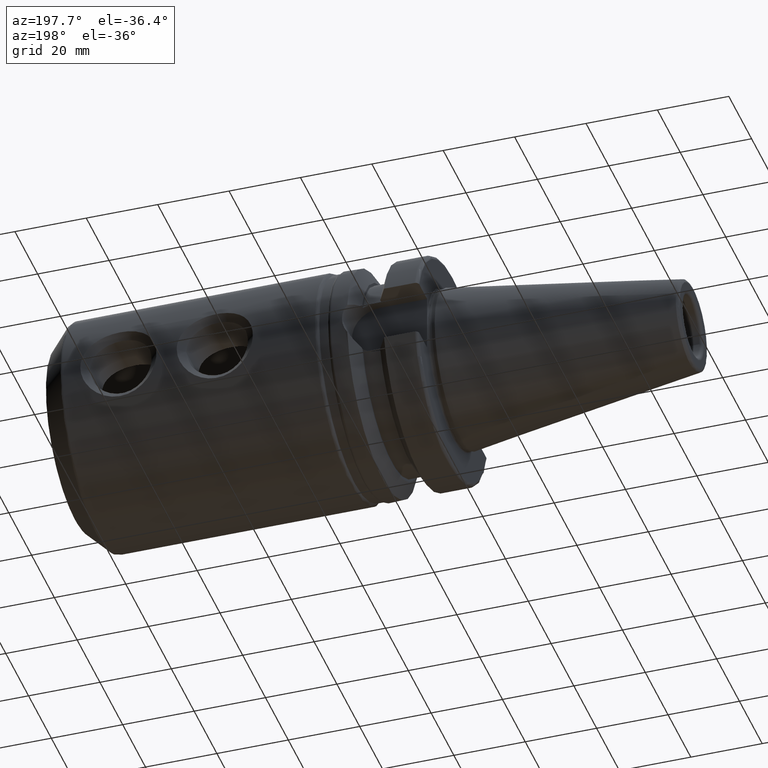
[diagram: clean part render]
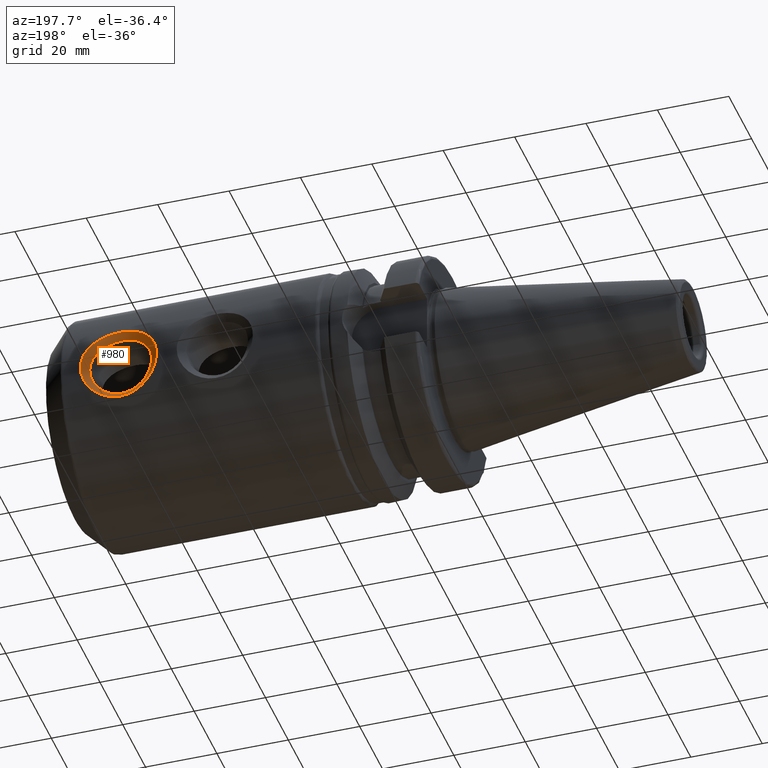
[diagram: same view with one face highlighted and labeled with its STEP entity id]
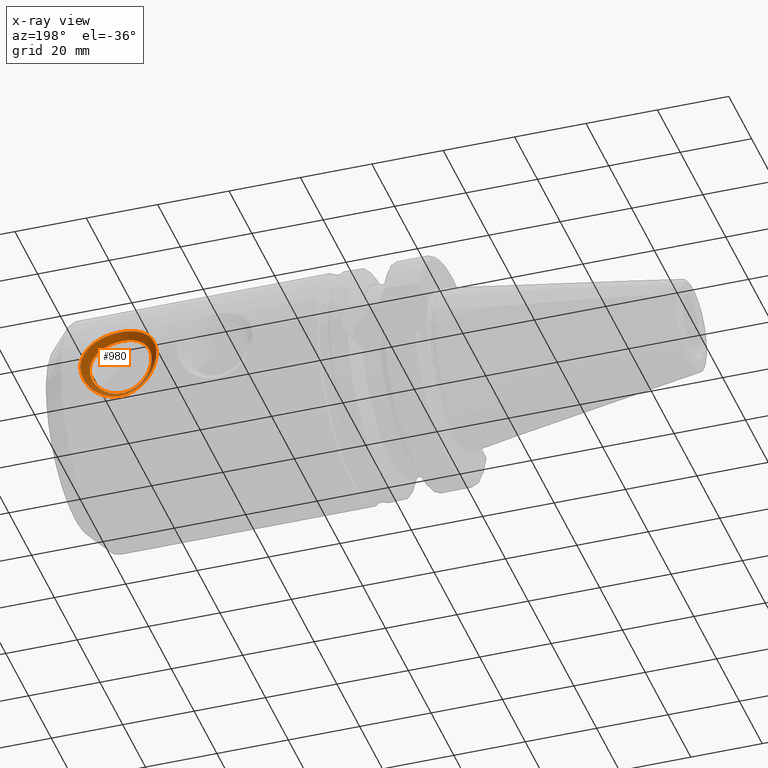
[diagram: x-ray of the same camera — body ghosted, the highlighted face saturated]
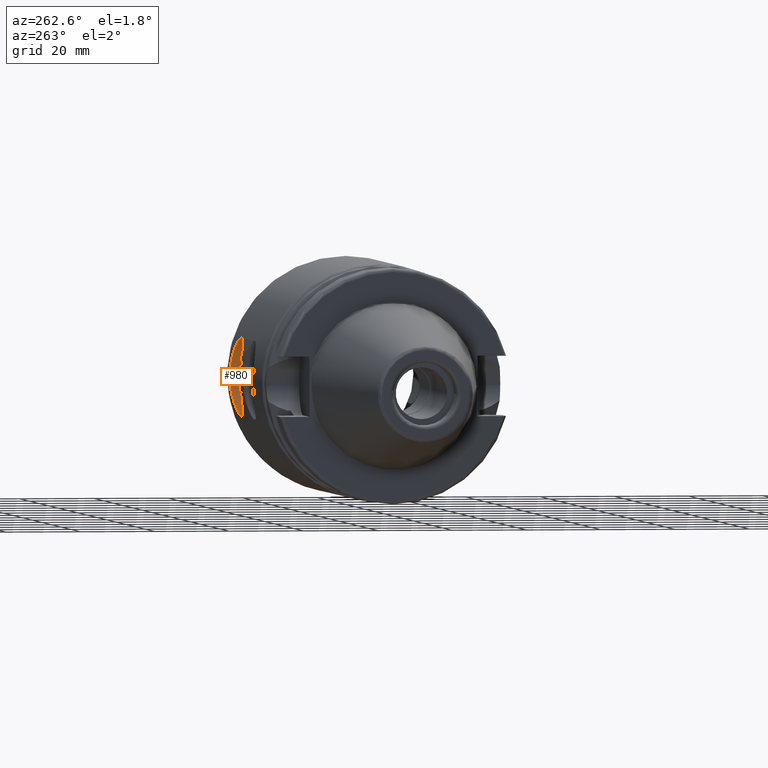
[diagram: same view with one face highlighted and labeled with its STEP entity id]
A machine part, auxiliary view. The second image highlights one B-rep face of the part: STEP entity #980.
The next image is the same camera in x-ray: the body ghosted, the highlighted face saturated — about 0% of this face is hidden behind the body in this view.
A second angle (auxiliary view) of the same face is appended — the face is thin or edge-on in the first view.
In plain terms, the highlighted face is a freeform B-spline surface patch.
Its self-contained STEP definition (entity closure, byte-faithful):
#19=B_SPLINE_SURFACE_WITH_KNOTS('',3,3,((#1774,#1775,#1776,#1777,#1778,
#1779,#1780,#1781,#1782,#1783,#1784,#1785,#1786,#1787,#1788,#1789,#1790,
#1791,#1792,#1793,#1794,#1795,#1796,#1797,#1798,#1799,#1800,#1801,#1802,
#1803,#1804),(#1805,#1806,#1807,#1808,#1809,#1810,#1811,#1812,#1813,#1814,
#1815,#1816,#1817,#1818,#1819,#1820,#1821,#1822,#1823,#1824,#1825,#1826,
#1827,#1828,#1829,#1830,#1831,#1832,#1833,#1834,#1835),(#1836,#1837,#1838,
#1839,#1840,#1841,#1842,#1843,#1844,#1845,#1846,#1847,#1848,#1849,#1850,
#1851,#1852,#1853,#1854,#1855,#1856,#1857,#1858,#1859,#1860,#1861,#1862,
#1863,#1864,#1865,#1866),(#1867,#1868,#1869,#1870,#1871,#1872,#1873,#1874,
#1875,#1876,#1877,#1878,#1879,#1880,#1881,#1882,#1883,#1884,#1885,#1886,
#1887,#1888,#1889,#1890,#1891,#1892,#1893,#1894,#1895,#1896,#1897)),
 .UNSPECIFIED.,.F.,.T.,.F.,(4,4),(4,1,1,1,1,1,1,1,1,1,1,1,1,1,1,1,1,1,1,
1,1,1,1,1,1,1,1,1,4),(0.,1.),(3.93676515653178,4.12423016398568,4.31169517143957,
4.49916017889347,4.68662518634736,4.87409019380126,5.06155520125515,5.43648521616294,
5.56146188779887,5.6864385594348,5.81141523107073,5.93639190270666,6.06136857434259,
6.18634524597852,6.43629858925038,6.68625193252224,6.9362052757941,7.06118194743003,
7.18615861906595,7.31113529070188,7.43611196233781,7.68606530560967,7.8110419772456,
7.93601864888153,8.18597199215339,8.43592533542525,8.62339034287914,8.81085535033304,
9.18578536524083),.UNSPECIFIED.);
#43=B_SPLINE_CURVE_WITH_KNOTS('',3,(#1672,#1673,#1674,#1675,#1676,#1677,
#1678,#1679,#1680,#1681,#1682,#1683,#1684,#1685,#1686,#1687,#1688,#1689,
#1690,#1691,#1692,#1693,#1694,#1695,#1696,#1697,#1698,#1699,#1700,#1701,
#1702),.UNSPECIFIED.,.T.,.F.,(4,1,1,1,1,1,1,1,1,1,1,1,1,1,1,1,1,1,1,1,1,
1,1,1,1,1,1,1,4),(-9.18578536524083,-8.81085535033304,-8.62339034287914,
-8.43592533542525,-8.18597199215339,-7.93601864888153,-7.8110419772456,
-7.68606530560967,-7.43611196233781,-7.31113529070188,-7.18615861906595,
-7.06118194743003,-6.9362052757941,-6.68625193252224,-6.43629858925038,
-6.18634524597852,-6.06136857434259,-5.93639190270666,-5.81141523107073,
-5.6864385594348,-5.56146188779887,-5.43648521616294,-5.06155520125515,
-4.87409019380126,-4.68662518634736,-4.49916017889347,-4.31169517143957,
-4.12423016398568,-3.93676515653178),.UNSPECIFIED.);
#48=B_SPLINE_CURVE_WITH_KNOTS('',3,(#1900,#1901,#1902,#1903,#1904,#1905,
#1906,#1907,#1908,#1909,#1910,#1911,#1912,#1913,#1914,#1915,#1916,#1917,
#1918,#1919,#1920,#1921,#1922,#1923,#1924,#1925,#1926,#1927,#1928,#1929,
#1930),.UNSPECIFIED.,.T.,.F.,(4,1,1,1,1,1,1,1,1,1,1,1,1,1,1,1,1,1,1,1,1,
1,1,1,1,1,1,1,4),(3.93676515653178,4.12423016398568,4.31169517143957,4.49916017889347,
4.68662518634736,4.87409019380126,5.06155520125515,5.43648521616294,5.56146188779887,
5.6864385594348,5.81141523107073,5.93639190270666,6.06136857434259,6.18634524597852,
6.43629858925038,6.68625193252224,6.9362052757941,7.06118194743003,7.18615861906595,
7.31113529070188,7.43611196233781,7.68606530560967,7.8110419772456,7.93601864888153,
8.18597199215339,8.43592533542525,8.62339034287914,8.81085535033304,9.18578536524083),
 .UNSPECIFIED.);
#68=LINE('',#1899,#122);
#122=VECTOR('',#1241,10.);
#223=FACE_OUTER_BOUND('',#286,.T.);
#286=EDGE_LOOP('',(#720,#721,#722,#723));
#428=VERTEX_POINT('',#1671);
#437=VERTEX_POINT('',#1898);
#536=EDGE_CURVE('',#428,#428,#43,.T.);
#547=EDGE_CURVE('',#428,#437,#68,.T.);
#548=EDGE_CURVE('',#437,#437,#48,.T.);
#720=ORIENTED_EDGE('',*,*,#547,.T.);
#721=ORIENTED_EDGE('',*,*,#548,.T.);
#722=ORIENTED_EDGE('',*,*,#547,.F.);
#723=ORIENTED_EDGE('',*,*,#536,.T.);
#980=ADVANCED_FACE('',(#223),#19,.T.);
#1241=DIRECTION('',(-0.707106781186546,-0.707106781186549,4.41588504004812E-16));
#1671=CARTESIAN_POINT('',(96.2114,31.75,-5.82867087928207E-15));
#1672=CARTESIAN_POINT('Ctrl Pts',(96.2114,31.75,-5.82867087928207E-15));
#1673=CARTESIAN_POINT('Ctrl Pts',(96.2114,31.75,-1.5383497898483));
#1674=CARTESIAN_POINT('Ctrl Pts',(95.6738769844959,31.5592554210622,-4.00497855982346));
#1675=CARTESIAN_POINT('Ctrl Pts',(93.9175809211257,31.0485577038571,-6.7153363933822));
#1676=CARTESIAN_POINT('Ctrl Pts',(92.1365461056781,30.613216698045,-8.48403391513177));
#1677=CARTESIAN_POINT('Ctrl Pts',(89.5391423838426,30.1435397995726,-9.99747062449679));
#1678=CARTESIAN_POINT('Ctrl Pts',(86.8414374487087,29.9349283882428,-10.5780596679465));
#1679=CARTESIAN_POINT('Ctrl Pts',(84.7784937450455,29.936575787415,-10.5770898281813));
#1680=CARTESIAN_POINT('Ctrl Pts',(82.6409072714766,30.0431233024017,-10.2720155760751));
#1681=CARTESIAN_POINT('Ctrl Pts',(80.5884798459898,30.3114468826463,-9.48131356326349));
#1682=CARTESIAN_POINT('Ctrl Pts',(78.825798025829,30.657332551499,-8.27790823019173));
#1683=CARTESIAN_POINT('Ctrl Pts',(77.7111797324596,30.9180048313966,-7.25312151879696));
#1684=CARTESIAN_POINT('Ctrl Pts',(76.7285294161736,31.179259743235,-6.03968089638099));
#1685=CARTESIAN_POINT('Ctrl Pts',(75.6393153774466,31.500471979376,-4.19545311164596));
#1686=CARTESIAN_POINT('Ctrl Pts',(74.8450695907317,31.7642052851795,-1.54718496050754));
#1687=CARTESIAN_POINT('Ctrl Pts',(74.8491811218395,31.7632218680119,1.54916557782125));
#1688=CARTESIAN_POINT('Ctrl Pts',(75.6407528775509,31.5001135131993,4.19352441939315));
#1689=CARTESIAN_POINT('Ctrl Pts',(76.7301801647629,31.1789710206064,6.03987935875599));
#1690=CARTESIAN_POINT('Ctrl Pts',(77.7125962029016,30.9181080523893,7.25124473711298));
#1691=CARTESIAN_POINT('Ctrl Pts',(78.826608717712,30.6573070758744,8.27725936822282));
#1692=CARTESIAN_POINT('Ctrl Pts',(80.1517698065309,30.3980067079536,9.1793273192084));
#1693=CARTESIAN_POINT('Ctrl Pts',(81.6121005393867,30.177080562855,9.87659357503904));
#1694=CARTESIAN_POINT('Ctrl Pts',(84.2414191520908,29.9095103024064,10.660770401931));
#1695=CARTESIAN_POINT('Ctrl Pts',(87.1284014365427,29.9102840888027,10.6578886209286));
#1696=CARTESIAN_POINT('Ctrl Pts',(90.2644896796361,30.270420757773,9.60309253100927));
#1697=CARTESIAN_POINT('Ctrl Pts',(92.3105376488216,30.6571228156896,8.30126004639439));
#1698=CARTESIAN_POINT('Ctrl Pts',(93.9178347984445,31.0492428351975,6.71791101634242));
#1699=CARTESIAN_POINT('Ctrl Pts',(95.2320822514075,31.4300177261679,4.67857150678101));
#1700=CARTESIAN_POINT('Ctrl Pts',(96.0382194841109,31.6915616912794,2.3668604728228));
#1701=CARTESIAN_POINT('Ctrl Pts',(96.2114,31.75,0.76917489492417));
#1702=CARTESIAN_POINT('Ctrl Pts',(96.2114,31.75,-8.46545056276682E-15));
#1774=CARTESIAN_POINT('Ctrl Pts',(96.2114,31.75,-8.46545056276682E-15));
#1775=CARTESIAN_POINT('Ctrl Pts',(96.2114,31.75,0.76917489492417));
#1776=CARTESIAN_POINT('Ctrl Pts',(96.0382194841109,31.6915616912794,2.3668604728228));
#1777=CARTESIAN_POINT('Ctrl Pts',(95.2320822514075,31.4300177261679,4.67857150678101));
#1778=CARTESIAN_POINT('Ctrl Pts',(93.9178347984445,31.0492428351975,6.71791101634242));
#1779=CARTESIAN_POINT('Ctrl Pts',(92.3105376488216,30.6571228156896,8.30126004639439));
#1780=CARTESIAN_POINT('Ctrl Pts',(90.2644896796361,30.270420757773,9.60309253100927));
#1781=CARTESIAN_POINT('Ctrl Pts',(87.1284014365427,29.9102840888027,10.6578886209286));
#1782=CARTESIAN_POINT('Ctrl Pts',(84.2414191520908,29.9095103024064,10.660770401931));
#1783=CARTESIAN_POINT('Ctrl Pts',(81.6121005393867,30.177080562855,9.87659357503904));
#1784=CARTESIAN_POINT('Ctrl Pts',(80.1517698065309,30.3980067079536,9.1793273192084));
#1785=CARTESIAN_POINT('Ctrl Pts',(78.826608717712,30.6573070758744,8.27725936822282));
#1786=CARTESIAN_POINT('Ctrl Pts',(77.7125962029016,30.9181080523893,7.25124473711298));
#1787=CARTESIAN_POINT('Ctrl Pts',(76.7301801647629,31.1789710206064,6.03987935875599));
#1788=CARTESIAN_POINT('Ctrl Pts',(75.6407528775509,31.5001135131993,4.19352441939315));
#1789=CARTESIAN_POINT('Ctrl Pts',(74.8491811218395,31.7632218680119,1.54916557782125));
#1790=CARTESIAN_POINT('Ctrl Pts',(74.8450695907317,31.7642052851795,-1.54718496050754));
#1791=CARTESIAN_POINT('Ctrl Pts',(75.6393153774466,31.500471979376,-4.19545311164596));
#1792=CARTESIAN_POINT('Ctrl Pts',(76.7285294161736,31.179259743235,-6.03968089638099));
#1793=CARTESIAN_POINT('Ctrl Pts',(77.7111797324596,30.9180048313966,-7.25312151879696));
#1794=CARTESIAN_POINT('Ctrl Pts',(78.825798025829,30.657332551499,-8.27790823019173));
#1795=CARTESIAN_POINT('Ctrl Pts',(80.5884798459898,30.3114468826463,-9.48131356326349));
#1796=CARTESIAN_POINT('Ctrl Pts',(82.6409072714766,30.0431233024017,-10.2720155760751));
#1797=CARTESIAN_POINT('Ctrl Pts',(84.7784937450455,29.936575787415,-10.5770898281813));
#1798=CARTESIAN_POINT('Ctrl Pts',(86.8414374487087,29.9349283882428,-10.5780596679465));
#1799=CARTESIAN_POINT('Ctrl Pts',(89.5391423838426,30.1435397995726,-9.99747062449679));
#1800=CARTESIAN_POINT('Ctrl Pts',(92.1365461056781,30.613216698045,-8.48403391513177));
#1801=CARTESIAN_POINT('Ctrl Pts',(93.9175809211257,31.0485577038571,-6.7153363933822));
#1802=CARTESIAN_POINT('Ctrl Pts',(95.6738769844959,31.5592554210622,-4.00497855982346));
#1803=CARTESIAN_POINT('Ctrl Pts',(96.2114,31.75,-1.5383497898483));
#1804=CARTESIAN_POINT('Ctrl Pts',(96.2114,31.75,-5.82867087928207E-15));
#1805=CARTESIAN_POINT('Ctrl Pts',(95.5447333333333,31.0833333333334,-8.04911692853238E-15));
#1806=CARTESIAN_POINT('Ctrl Pts',(95.5447333333333,31.0833333333334,0.707956805601358));
#1807=CARTESIAN_POINT('Ctrl Pts',(95.3882461541993,31.0323746857938,2.17847867684417));
#1808=CARTESIAN_POINT('Ctrl Pts',(94.6561028639846,30.803394907613,4.32032740883184));
#1809=CARTESIAN_POINT('Ctrl Pts',(93.4489777269584,30.4674498969302,6.23319299012701));
#1810=CARTESIAN_POINT('Ctrl Pts',(91.9552128588778,30.1188269705102,7.73842904787587));
#1811=CARTESIAN_POINT('Ctrl Pts',(90.0328067261715,29.7727596506889,8.99174126854291));
#1812=CARTESIAN_POINT('Ctrl Pts',(87.057945585492,29.448613553091,10.0198406114559));
#1813=CARTESIAN_POINT('Ctrl Pts',(84.2998030454889,29.4479023759025,10.0226499174519));
#1814=CARTESIAN_POINT('Ctrl Pts',(81.8036046464503,29.6887572761492,9.25828392337204));
#1815=CARTESIAN_POINT('Ctrl Pts',(80.4243658948898,29.8869894386657,8.5833513565502));
#1816=CARTESIAN_POINT('Ctrl Pts',(79.1811303427745,30.1187875794415,7.71701229689575));
#1817=CARTESIAN_POINT('Ctrl Pts',(78.1436673472751,30.3508942776646,6.73998544497598));
#1818=CARTESIAN_POINT('Ctrl Pts',(77.2355362037806,30.58196726692,5.59659713807995));
#1819=CARTESIAN_POINT('Ctrl Pts',(76.236500140482,30.8649805587288,3.86874435407175));
#1820=CARTESIAN_POINT('Ctrl Pts',(75.5195880997394,31.0948833714275,1.42342403158165));
#1821=CARTESIAN_POINT('Ctrl Pts',(75.5157294535101,31.0957768386397,-1.42166814063918));
#1822=CARTESIAN_POINT('Ctrl Pts',(76.2351864175695,30.8652925894774,-3.87046129139519));
#1823=CARTESIAN_POINT('Ctrl Pts',(77.2339958388578,30.5822235348959,-5.59640340764253));
#1824=CARTESIAN_POINT('Ctrl Pts',(78.1422888596615,30.3508064630363,-6.7417107415645));
#1825=CARTESIAN_POINT('Ctrl Pts',(79.1803789349785,30.1188089159087,-7.71761372437261));
#1826=CARTESIAN_POINT('Ctrl Pts',(80.8339072741653,29.8096224108002,-8.87330897912664));
#1827=CARTESIAN_POINT('Ctrl Pts',(82.7785575245686,29.5682264677465,-9.64340855332402));
#1828=CARTESIAN_POINT('Ctrl Pts',(84.814489777402,29.4722078405589,-9.94150457289432));
#1829=CARTESIAN_POINT('Ctrl Pts',(86.7811635253987,29.4706754495485,-9.94280836624991));
#1830=CARTESIAN_POINT('Ctrl Pts',(89.3490605719157,29.6588760174028,-9.37392854473838));
#1831=CARTESIAN_POINT('Ctrl Pts',(91.7938856129676,30.0798449930747,-7.91182231477346));
#1832=CARTESIAN_POINT('Ctrl Pts',(93.4488786768914,30.4668698893061,-6.2309238218131));
#1833=CARTESIAN_POINT('Ctrl Pts',(95.061571559112,30.9173574206816,-3.68802019392586));
#1834=CARTESIAN_POINT('Ctrl Pts',(95.5447333333334,31.0833333333334,-1.4159136112027));
#1835=CARTESIAN_POINT('Ctrl Pts',(95.5447333333334,31.0833333333334,-7.58652400160524E-15));
#1836=CARTESIAN_POINT('Ctrl Pts',(94.8780666666667,30.4166666666667,-7.63278329429795E-15));
#1837=CARTESIAN_POINT('Ctrl Pts',(94.8780666666667,30.4166666666667,0.646738716278548));
#1838=CARTESIAN_POINT('Ctrl Pts',(94.7382728242876,30.3731876803083,1.99009688086554));
#1839=CARTESIAN_POINT('Ctrl Pts',(94.0801234765617,30.1767720890582,3.96208331088268));
#1840=CARTESIAN_POINT('Ctrl Pts',(92.9801206554723,29.885656958663,5.74847496391161));
#1841=CARTESIAN_POINT('Ctrl Pts',(91.5998880689341,29.5805311253309,7.17559804935734));
#1842=CARTESIAN_POINT('Ctrl Pts',(89.801123772707,29.2750985436048,8.38039000607654));
#1843=CARTESIAN_POINT('Ctrl Pts',(86.9874897344413,28.9869430173793,9.38179260198329));
#1844=CARTESIAN_POINT('Ctrl Pts',(84.3581869388869,28.9862944493985,9.38452943297281));
#1845=CARTESIAN_POINT('Ctrl Pts',(81.9951087535138,29.2004339894433,8.63997427170504));
#1846=CARTESIAN_POINT('Ctrl Pts',(80.6969619832487,29.3759721693778,7.987375393892));
#1847=CARTESIAN_POINT('Ctrl Pts',(79.535651967837,29.5802680830085,7.15676522556868));
#1848=CARTESIAN_POINT('Ctrl Pts',(78.5747384916486,29.78368050294,6.22872615283899));
#1849=CARTESIAN_POINT('Ctrl Pts',(77.7408922427982,29.9849635132336,5.1533149174039));
#1850=CARTESIAN_POINT('Ctrl Pts',(76.832247403413,30.2298476042583,3.54396428875035));
#1851=CARTESIAN_POINT('Ctrl Pts',(76.1899950776393,30.426544874843,1.29768248534204));
#1852=CARTESIAN_POINT('Ctrl Pts',(76.1863893162884,30.4273483920999,-1.29615132077082));
#1853=CARTESIAN_POINT('Ctrl Pts',(76.8310574576924,30.2301131995787,-3.54546947114442));
#1854=CARTESIAN_POINT('Ctrl Pts',(77.7394622615419,29.9851873265569,-5.15312591890407));
#1855=CARTESIAN_POINT('Ctrl Pts',(78.5733979868633,29.7836080946761,-6.23029996433203));
#1856=CARTESIAN_POINT('Ctrl Pts',(79.5349598441281,29.5802852803185,-7.15731921855349));
#1857=CARTESIAN_POINT('Ctrl Pts',(81.0793347023407,29.3077979389541,-8.2653043949898));
#1858=CARTESIAN_POINT('Ctrl Pts',(82.9162077776605,29.0933296330912,-9.01480153057298));
#1859=CARTESIAN_POINT('Ctrl Pts',(84.8504858097586,29.0078398937029,-9.30591931760739));
#1860=CARTESIAN_POINT('Ctrl Pts',(86.7208896020887,29.0064225108542,-9.3075570645533));
#1861=CARTESIAN_POINT('Ctrl Pts',(89.1589787599888,29.1742122352331,-8.75038646497998));
#1862=CARTESIAN_POINT('Ctrl Pts',(91.4512251202571,29.5464732881043,-7.33961071441514));
#1863=CARTESIAN_POINT('Ctrl Pts',(92.9801764326571,29.8851820747551,-5.746511250244));
#1864=CARTESIAN_POINT('Ctrl Pts',(94.4492661337281,30.275459420301,-3.37106182802826));
#1865=CARTESIAN_POINT('Ctrl Pts',(94.8780666666667,30.4166666666667,-1.2934774325571));
#1866=CARTESIAN_POINT('Ctrl Pts',(94.8780666666667,30.4166666666667,-9.3443771239284E-15));
#1867=CARTESIAN_POINT('Ctrl Pts',(94.2114,29.75,-7.21644966006352E-15));
#1868=CARTESIAN_POINT('Ctrl Pts',(94.2114,29.75,0.585520626955737));
#1869=CARTESIAN_POINT('Ctrl Pts',(94.0882994943759,29.7140006748227,1.80171508488691));
#1870=CARTESIAN_POINT('Ctrl Pts',(93.5041440891388,29.5501492705034,3.60383921293351));
#1871=CARTESIAN_POINT('Ctrl Pts',(92.5112635839861,29.3038640203957,5.2637569376962));
#1872=CARTESIAN_POINT('Ctrl Pts',(91.2445632789903,29.0422352801516,6.61276705083882));
#1873=CARTESIAN_POINT('Ctrl Pts',(89.5694408192425,28.7774374365208,7.76903874361018));
#1874=CARTESIAN_POINT('Ctrl Pts',(86.9170338833907,28.5252724816676,8.74374459251064));
#1875=CARTESIAN_POINT('Ctrl Pts',(84.416570832285,28.5246865228946,8.74640894849372));
#1876=CARTESIAN_POINT('Ctrl Pts',(82.1866128605773,28.7121107027375,8.02166462003803));
#1877=CARTESIAN_POINT('Ctrl Pts',(80.9695580716076,28.8649549000899,7.3913994312338));
#1878=CARTESIAN_POINT('Ctrl Pts',(79.8901735928994,29.0417485865755,6.59651815424162));
#1879=CARTESIAN_POINT('Ctrl Pts',(79.0058096360221,29.2164667282153,5.71746686070199));
#1880=CARTESIAN_POINT('Ctrl Pts',(78.2462482818158,29.3879597595472,4.71003269672785));
#1881=CARTESIAN_POINT('Ctrl Pts',(77.4279946663441,29.5947146497878,3.21918422342895));
#1882=CARTESIAN_POINT('Ctrl Pts',(76.8604020555392,29.7582063782586,1.17194093910243));
#1883=CARTESIAN_POINT('Ctrl Pts',(76.8570491790667,29.7589199455601,-1.17063450090247));
#1884=CARTESIAN_POINT('Ctrl Pts',(77.4269284978154,29.5949338096801,-3.22047765089365));
#1885=CARTESIAN_POINT('Ctrl Pts',(78.244928684226,29.3881511182179,-4.70984843016562));
#1886=CARTESIAN_POINT('Ctrl Pts',(79.0045071140652,29.2164097263159,-5.71888918709957));
#1887=CARTESIAN_POINT('Ctrl Pts',(79.8895407532777,29.0417616447282,-6.59702471273438));
#1888=CARTESIAN_POINT('Ctrl Pts',(81.3247621305162,28.8059734671081,-7.65729981085295));
#1889=CARTESIAN_POINT('Ctrl Pts',(83.0538580307524,28.6184327984359,-8.38619450782192));
#1890=CARTESIAN_POINT('Ctrl Pts',(84.8864818421151,28.5434719468468,-8.67033406232045));
#1891=CARTESIAN_POINT('Ctrl Pts',(86.6606156787786,28.5421695721599,-8.67230576285668));
#1892=CARTESIAN_POINT('Ctrl Pts',(88.9688969480619,28.6895484530633,-8.12684438522157));
#1893=CARTESIAN_POINT('Ctrl Pts',(91.1085646275466,29.013101583134,-6.76739911405682));
#1894=CARTESIAN_POINT('Ctrl Pts',(92.5114741884229,29.3034942602042,-5.2620986786749));
#1895=CARTESIAN_POINT('Ctrl Pts',(93.8369607083442,29.6335614199204,-3.05410346213066));
#1896=CARTESIAN_POINT('Ctrl Pts',(94.2114,29.75,-1.1710412539115));
#1897=CARTESIAN_POINT('Ctrl Pts',(94.2114,29.75,-1.11022302462516E-14));
#1898=CARTESIAN_POINT('',(94.2114,29.75,-7.21644966006352E-15));
#1899=CARTESIAN_POINT('',(96.2114,31.75,-8.46545056276682E-15));
#1900=CARTESIAN_POINT('Ctrl Pts',(94.2114,29.75,-7.21644966006352E-15));
#1901=CARTESIAN_POINT('Ctrl Pts',(94.2114,29.75,0.585520626955737));
#1902=CARTESIAN_POINT('Ctrl Pts',(94.0882994943759,29.7140006748227,1.80171508488691));
#1903=CARTESIAN_POINT('Ctrl Pts',(93.5041440891388,29.5501492705034,3.60383921293351));
#1904=CARTESIAN_POINT('Ctrl Pts',(92.5112635839861,29.3038640203957,5.2637569376962));
#1905=CARTESIAN_POINT('Ctrl Pts',(91.2445632789903,29.0422352801516,6.61276705083882));
#1906=CARTESIAN_POINT('Ctrl Pts',(89.5694408192425,28.7774374365208,7.76903874361018));
#1907=CARTESIAN_POINT('Ctrl Pts',(86.9170338833907,28.5252724816676,8.74374459251064));
#1908=CARTESIAN_POINT('Ctrl Pts',(84.416570832285,28.5246865228946,8.74640894849372));
#1909=CARTESIAN_POINT('Ctrl Pts',(82.1866128605773,28.7121107027375,8.02166462003803));
#1910=CARTESIAN_POINT('Ctrl Pts',(80.9695580716076,28.8649549000899,7.3913994312338));
#1911=CARTESIAN_POINT('Ctrl Pts',(79.8901735928994,29.0417485865755,6.59651815424162));
#1912=CARTESIAN_POINT('Ctrl Pts',(79.0058096360221,29.2164667282153,5.71746686070199));
#1913=CARTESIAN_POINT('Ctrl Pts',(78.2462482818158,29.3879597595472,4.71003269672785));
#1914=CARTESIAN_POINT('Ctrl Pts',(77.4279946663441,29.5947146497878,3.21918422342895));
#1915=CARTESIAN_POINT('Ctrl Pts',(76.8604020555392,29.7582063782586,1.17194093910243));
#1916=CARTESIAN_POINT('Ctrl Pts',(76.8570491790667,29.7589199455601,-1.17063450090247));
#1917=CARTESIAN_POINT('Ctrl Pts',(77.4269284978154,29.5949338096801,-3.22047765089365));
#1918=CARTESIAN_POINT('Ctrl Pts',(78.244928684226,29.3881511182179,-4.70984843016562));
#1919=CARTESIAN_POINT('Ctrl Pts',(79.0045071140652,29.2164097263159,-5.71888918709957));
#1920=CARTESIAN_POINT('Ctrl Pts',(79.8895407532777,29.0417616447282,-6.59702471273438));
#1921=CARTESIAN_POINT('Ctrl Pts',(81.3247621305162,28.8059734671081,-7.65729981085295));
#1922=CARTESIAN_POINT('Ctrl Pts',(83.0538580307524,28.6184327984359,-8.38619450782192));
#1923=CARTESIAN_POINT('Ctrl Pts',(84.8864818421151,28.5434719468468,-8.67033406232045));
#1924=CARTESIAN_POINT('Ctrl Pts',(86.6606156787786,28.5421695721599,-8.67230576285668));
#1925=CARTESIAN_POINT('Ctrl Pts',(88.9688969480619,28.6895484530633,-8.12684438522157));
#1926=CARTESIAN_POINT('Ctrl Pts',(91.1085646275466,29.013101583134,-6.76739911405682));
#1927=CARTESIAN_POINT('Ctrl Pts',(92.5114741884229,29.3034942602042,-5.2620986786749));
#1928=CARTESIAN_POINT('Ctrl Pts',(93.8369607083442,29.6335614199204,-3.05410346213066));
#1929=CARTESIAN_POINT('Ctrl Pts',(94.2114,29.75,-1.1710412539115));
#1930=CARTESIAN_POINT('Ctrl Pts',(94.2114,29.75,-1.11022302462516E-14));